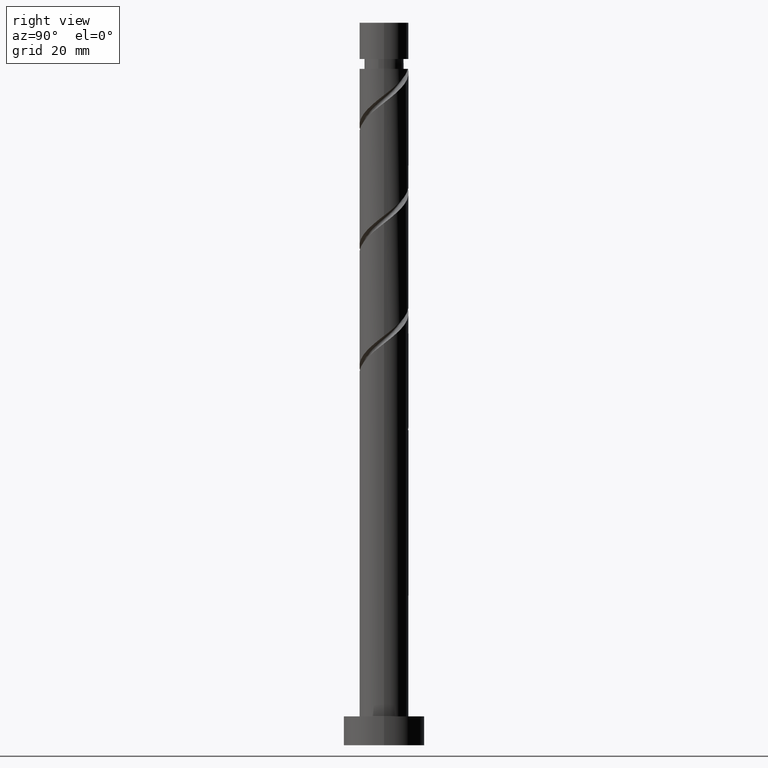
[diagram: clean part render]
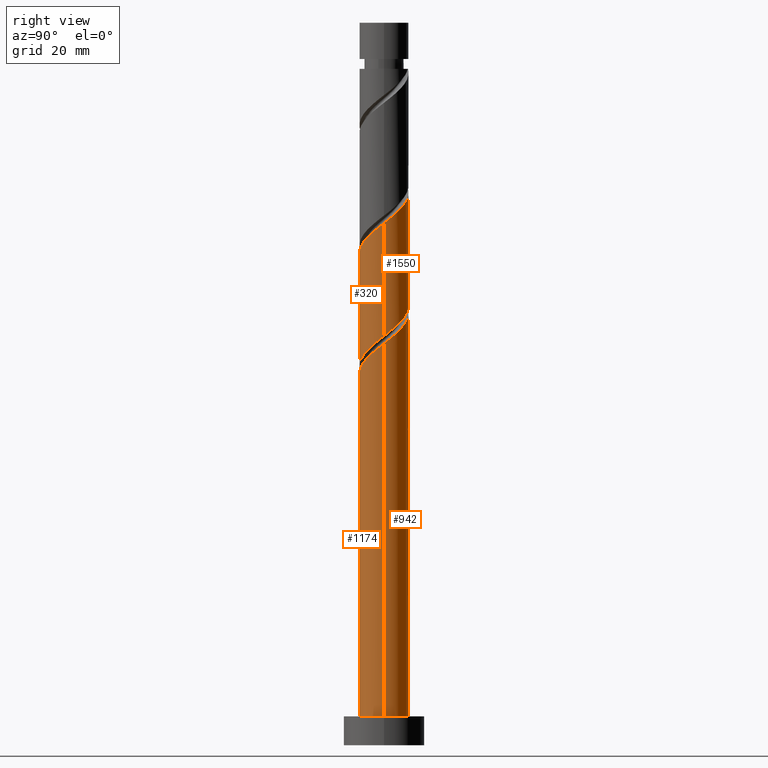
[diagram: same view with one multi-face feature highlighted, each face labeled with its STEP entity id]
A machine part, right view. The highlighted faces form ONE feature: a constant-radius fillet chain: 4 tangent blend faces with common blend radius 4.25 mm. The faces share edges in the B-rep.
Their STEP definitions:
[1] entity #1550 (Cylinder):
#15 = CARTESIAN_POINT ( 'NONE',  ( -4.250000000000005329, 0.2421383841473366549, 100.5512557596598668 ) ) ;
#29 = VERTEX_POINT ( 'NONE', #552 ) ;
#42 = CARTESIAN_POINT ( 'NONE',  ( -3.368557083506909411, 2.677392833327503663, 79.00973595700409646 ) ) ;
#62 = CARTESIAN_POINT ( 'NONE',  ( 3.368557083506915628, 2.677392833327505883, 92.55140262367073944 ) ) ;
#89 = EDGE_CURVE ( 'NONE', #1088, #472, #399, .T. ) ;
#144 = CARTESIAN_POINT ( 'NONE',  ( -3.866668882057083589, 1.763908091860646898, 99.32223595700408225 ) ) ;
#158 = CARTESIAN_POINT ( 'NONE',  ( 1.151487905055735617, 4.146044477970352027, 94.63473595700403962 ) ) ;
#175 = CARTESIAN_POINT ( 'NONE',  ( -1.763908091860643346, 3.866668882057078704, 77.44723595700408225 ) ) ;
#177 = DIRECTION ( 'NONE',  ( -0.000000000000000000, -0.000000000000000000, -1.000000000000000000 ) ) ;
#187 = CYLINDRICAL_SURFACE ( 'NONE', #1254, 4.250000000000000000 ) ;
#192 = FACE_OUTER_BOUND ( 'NONE', #683, .T. ) ;
#202 = DIRECTION ( 'NONE',  ( -1.000000000000000000, 0.000000000000000000, 0.000000000000000000 ) ) ;
#230 = CARTESIAN_POINT ( 'NONE',  ( 4.250000000000005329, 5.157627357422775483E-15, 90.32410018220048187 ) ) ;
#252 = CARTESIAN_POINT ( 'NONE',  ( -0.8457393215406283637, 4.165000000000005365, 96.19723595700408225 ) ) ;
#266 = CARTESIAN_POINT ( 'NONE',  ( 0.8457393215406299181, 4.164999999999999147, 75.36390262367075366 ) ) ;
#269 = CARTESIAN_POINT ( 'NONE',  ( 4.165000000000005365, 0.8457393215406285858, 90.98890262367073944 ) ) ;
#296 = CARTESIAN_POINT ( 'NONE',  ( 2.091401674409914424, 3.699802567202122194, 74.32223595700408225 ) ) ;
#313 = EDGE_CURVE ( 'NONE', #1088, #1154, #589, .T. ) ;
#323 = CARTESIAN_POINT ( 'NONE',  ( 0.000000000000000000, 0.000000000000000000, 125.0000000000000000 ) ) ;
#339 = ORIENTED_EDGE ( 'NONE', *, *, #313, .T. ) ;
#350 = VECTOR ( 'NONE', #939, 1000.000000000000000 ) ;
#385 = CARTESIAN_POINT ( 'NONE',  ( -4.164999999999999147, 0.8457393215406291409, 80.57223595700409646 ) ) ;
#393 = CARTESIAN_POINT ( 'NONE',  ( 4.146044477970347586, 1.151487905055731842, 71.71806929033738243 ) ) ;
#397 = CARTESIAN_POINT ( 'NONE',  ( -3.132343059735661406, 2.872442681086236238, 98.28056929033741085 ) ) ;
#399 =( BOUNDED_CURVE ( )  B_SPLINE_CURVE ( 2, ( #883, #1370, #269, #651, #526, #62, #1556, #1227, #1484, #158, #888, #1474, #252, #511, #745, #1496, #397, #642, #144, #1120, #998, #15, #987 ),
 .UNSPECIFIED., .F., .T. ) 
 B_SPLINE_CURVE_WITH_KNOTS ( ( 3, 2, 2, 2, 2, 2, 2, 2, 2, 2, 2, 3 ),
 ( 0.4295322023138551937, 0.4375000000000000000, 0.4499999999999999556, 0.4625000000000000222, 0.4749999999999999778, 0.4875000000000000444, 0.5000000000000000000, 0.5124999999999999556, 0.5250000000000000222, 0.5374999999999999778, 0.5500000000000000444, 0.5545322023138552492 ),
 .UNSPECIFIED. ) 
 CURVE ( )  GEOMETRIC_REPRESENTATION_ITEM ( )  RATIONAL_B_SPLINE_CURVE ( ( 0.9039174447099387333, 0.9019565955404680313, 0.9090909090909164991, 0.8978984914501325632, 0.9090909090909164991, 0.8978984914501325632, 0.9090909090909164991, 0.8978984914501325632, 0.9090909090909164991, 0.8978984914501325632, 0.9090909090909164991, 0.8978984914501325632, 0.9090909090909164991, 0.8978984914501325632, 0.9090909090909164991, 0.8978984914501325632, 0.9090909090909164991, 0.8978984914501325632, 0.9090909090909164991, 0.8978984914501325632, 0.9090909090909164991, 0.9050328050005808089, 0.9039174447099387333 ) ) 
 REPRESENTATION_ITEM ( '' )  );
#412 = CARTESIAN_POINT ( 'NONE',  ( 1.505410515492323187, 4.031048050897332757, 74.84306929033742506 ) ) ;
#472 = VERTEX_POINT ( 'NONE', #1177 ) ;
#503 = CARTESIAN_POINT ( 'NONE',  ( 4.249999999999999112, 4.467944629395341012E-15, 70.82037173180769685 ) ) ;
#511 = CARTESIAN_POINT ( 'NONE',  ( -1.505410515492324075, 4.031048050897339863, 96.71806929033738243 ) ) ;
#526 = CARTESIAN_POINT ( 'NONE',  ( 3.699802567202127079, 2.091401674409914868, 92.03056929033743927 ) ) ;
#546 = CARTESIAN_POINT ( 'NONE',  ( -1.151487905055732286, 4.146044477970347586, 76.92640262367076787 ) ) ;
#552 = CARTESIAN_POINT ( 'NONE',  ( -4.249999999999999112, -5.037682535157162968E-15, 81.23703839847436825 ) ) ;
#555 = CARTESIAN_POINT ( 'NONE',  ( -4.250000000000000000, 0.4271410714851638368, 80.90273382306652650 ) ) ;
#589 = LINE ( 'NONE', #666, #1113 ) ;
#642 = CARTESIAN_POINT ( 'NONE',  ( -3.587293286143814264, 2.376328278665558180, 98.80140262367072523 ) ) ;
#646 = CARTESIAN_POINT ( 'NONE',  ( 4.250000000000000000, 0.2421383841473405407, 71.00988282101498328 ) ) ;
#651 = CARTESIAN_POINT ( 'NONE',  ( 4.031048050897339863, 1.505410515492323187, 91.50973595700408225 ) ) ;
#666 = CARTESIAN_POINT ( 'NONE',  ( 4.250000000000000000, 5.204748896376250699E-16, 125.0000000000000000 ) ) ;
#678 = LINE ( 'NONE', #1052, #350 ) ;
#683 = EDGE_LOOP ( 'NONE', ( #929, #339, #1286, #807 ) ) ;
#745 = CARTESIAN_POINT ( 'NONE',  ( -2.091401674409915312, 3.699802567202127079, 97.23890262367075366 ) ) ;
#763 = CARTESIAN_POINT ( 'NONE',  ( 0.1860681275889352893, 4.298951949102664649, 75.88473595700408225 ) ) ;
#784 = CARTESIAN_POINT ( 'NONE',  ( 3.587293286143810711, 2.376328278665553739, 72.75973595700408225 ) ) ;
#807 = ORIENTED_EDGE ( 'NONE', *, *, #1053, .F. ) ;
#867 = EDGE_CURVE ( 'NONE', #29, #1154, #1005, .T. ) ;
#881 = CARTESIAN_POINT ( 'NONE',  ( -3.699802567202122194, 2.091401674409913092, 79.53056929033741085 ) ) ;
#883 = CARTESIAN_POINT ( 'NONE',  ( 4.250000000000005329, 5.157627357422775483E-15, 90.32410018220048187 ) ) ;
#885 = CARTESIAN_POINT ( 'NONE',  ( 4.249999999999999112, 4.467944629395341012E-15, 70.82037173180769685 ) ) ;
#888 = CARTESIAN_POINT ( 'NONE',  ( 0.4827098887334009825, 4.222498213536511003, 95.15556929033739664 ) ) ;
#904 = CARTESIAN_POINT ( 'NONE',  ( -2.376328278665554627, 3.587293286143810711, 77.96806929033741085 ) ) ;
#929 = ORIENTED_EDGE ( 'NONE', *, *, #89, .F. ) ;
#939 = DIRECTION ( 'NONE',  ( -0.000000000000000000, -0.000000000000000000, -1.000000000000000000 ) ) ;
#987 = CARTESIAN_POINT ( 'NONE',  ( -4.250000000000005329, 2.458868856445742094E-15, 100.7407668488671675 ) ) ;
#992 = CARTESIAN_POINT ( 'NONE',  ( -4.031048050897333646, 1.505410515492322743, 80.05140262367075366 ) ) ;
#998 = CARTESIAN_POINT ( 'NONE',  ( -4.222498213536511003, 0.4827098887334001498, 100.3639026236707394 ) ) ;
#1005 =( BOUNDED_CURVE ( )  B_SPLINE_CURVE ( 2, ( #1501, #555, #385, #992, #881, #42, #1399, #904, #175, #546, #1367, #763, #266, #412, #296, #1026, #1125, #784, #1524, #393, #1020, #646, #885 ),
 .UNSPECIFIED., .F., .T. ) 
 B_SPLINE_CURVE_WITH_KNOTS ( ( 3, 2, 2, 2, 2, 2, 2, 2, 2, 2, 2, 3 ),
 ( 0.6795322023138551382, 0.6875000000000000000, 0.6999999999999999556, 0.7125000000000000222, 0.7249999999999999778, 0.7375000000000000444, 0.7500000000000000000, 0.7624999999999999556, 0.7750000000000000222, 0.7874999999999999778, 0.8000000000000000444, 0.8045322023138551382 ),
 .UNSPECIFIED. ) 
 CURVE ( )  GEOMETRIC_REPRESENTATION_ITEM ( )  RATIONAL_B_SPLINE_CURVE ( ( 0.9039174447099327381, 0.9019565955404620361, 0.9090909090909105039, 0.8978984914501265679, 0.9090909090909105039, 0.8978984914501265679, 0.9090909090909105039, 0.8978984914501265679, 0.9090909090909105039, 0.8978984914501265679, 0.9090909090909105039, 0.8978984914501265679, 0.9090909090909105039, 0.8978984914501265679, 0.9090909090909105039, 0.8978984914501265679, 0.9090909090909105039, 0.8978984914501265679, 0.9090909090909105039, 0.8978984914501265679, 0.9090909090909105039, 0.9050328050005749247, 0.9039174447099327381 ) ) 
 REPRESENTATION_ITEM ( '' )  );
#1020 = CARTESIAN_POINT ( 'NONE',  ( 4.222498213536506562, 0.4827098887333977073, 71.19723595700409646 ) ) ;
#1026 = CARTESIAN_POINT ( 'NONE',  ( 2.677392833327504551, 3.368557083506908967, 73.80140262367072523 ) ) ;
#1052 = CARTESIAN_POINT ( 'NONE',  ( -4.250000000000000000, 0.000000000000000000, 125.0000000000000000 ) ) ;
#1053 = EDGE_CURVE ( 'NONE', #472, #29, #678, .T. ) ;
#1088 = VERTEX_POINT ( 'NONE', #230 ) ;
#1113 = VECTOR ( 'NONE', #177, 1000.000000000000000 ) ;
#1120 = CARTESIAN_POINT ( 'NONE',  ( -4.146044477970352027, 1.151487905055735173, 99.84306929033741085 ) ) ;
#1125 = CARTESIAN_POINT ( 'NONE',  ( 3.132343059735657853, 2.872442681086231797, 73.28056929033742506 ) ) ;
#1154 = VERTEX_POINT ( 'NONE', #503 ) ;
#1177 = CARTESIAN_POINT ( 'NONE',  ( -4.250000000000005329, 2.458868856445742094E-15, 100.7407668488671675 ) ) ;
#1227 = CARTESIAN_POINT ( 'NONE',  ( 2.376328278665559512, 3.587293286143813820, 93.59306929033742506 ) ) ;
#1254 = AXIS2_PLACEMENT_3D ( 'NONE', #323, #1305, #202 ) ;
#1286 = ORIENTED_EDGE ( 'NONE', *, *, #867, .F. ) ;
#1305 = DIRECTION ( 'NONE',  ( -0.000000000000000000, -0.000000000000000000, -1.000000000000000000 ) ) ;
#1367 = CARTESIAN_POINT ( 'NONE',  ( -0.4827098887333985955, 4.222498213536506562, 76.40556929033741085 ) ) ;
#1370 = CARTESIAN_POINT ( 'NONE',  ( 4.250000000000005329, 0.4271410714851656132, 90.65840475760832362 ) ) ;
#1399 = CARTESIAN_POINT ( 'NONE',  ( -2.872442681086231797, 3.132343059735656965, 78.48890262367075366 ) ) ;
#1474 = CARTESIAN_POINT ( 'NONE',  ( -0.1860681275889338737, 4.298951949102669090, 95.67640262367076787 ) ) ;
#1484 = CARTESIAN_POINT ( 'NONE',  ( 1.763908091860647787, 3.866668882057083589, 94.11390262367072523 ) ) ;
#1496 = CARTESIAN_POINT ( 'NONE',  ( -2.677392833327506327, 3.368557083506915184, 97.75973595700409646 ) ) ;
#1501 = CARTESIAN_POINT ( 'NONE',  ( -4.249999999999999112, -5.037682535157162968E-15, 81.23703839847436825 ) ) ;
#1524 = CARTESIAN_POINT ( 'NONE',  ( 3.866668882057079148, 1.763908091860642680, 72.23890262367075366 ) ) ;
#1550 = ADVANCED_FACE ( 'NONE', ( #192 ), #187, .T. ) ;
#1556 = CARTESIAN_POINT ( 'NONE',  ( 2.872442681086236682, 3.132343059735660518, 93.07223595700409646 ) ) ;
[2] entity #320 (Cylinder):
#30 = CARTESIAN_POINT ( 'NONE',  ( -4.250000000000000000, -0.2421383841473411791, 60.59321615434829766 ) ) ;
#57 = CARTESIAN_POINT ( 'NONE',  ( -1.151487905055735173, -4.146044477970352027, 84.21806929033739664 ) ) ;
#65 = CARTESIAN_POINT ( 'NONE',  ( 2.677392833327505883, -3.368557083506915184, 87.34306929033741085 ) ) ;
#90 = CARTESIAN_POINT ( 'NONE',  ( 4.222498213536511003, -0.4827098887334005384, 89.94723595700406804 ) ) ;
#100 = DIRECTION ( 'NONE',  ( -0.000000000000000000, -0.000000000000000000, -1.000000000000000000 ) ) ;
#115 = CARTESIAN_POINT ( 'NONE',  ( -4.249999999999999112, -5.037682535157162968E-15, 60.40370506514102544 ) ) ;
#155 = CARTESIAN_POINT ( 'NONE',  ( -4.250000000000005329, -5.697379057618182477E-15, 79.90743351553382468 ) ) ;
#160 = CARTESIAN_POINT ( 'NONE',  ( -3.587293286143809823, -2.376328278665554627, 62.34306929033741085 ) ) ;
#167 = CARTESIAN_POINT ( 'NONE',  ( -4.222498213536506562, -0.4827098887333983179, 60.78056929033740374 ) ) ;
#177 = DIRECTION ( 'NONE',  ( -0.000000000000000000, -0.000000000000000000, -1.000000000000000000 ) ) ;
#215 = EDGE_CURVE ( 'NONE', #822, #544, #1354, .T. ) ;
#230 = CARTESIAN_POINT ( 'NONE',  ( 4.250000000000005329, 5.157627357422775483E-15, 90.32410018220048187 ) ) ;
#268 = CARTESIAN_POINT ( 'NONE',  ( -4.250000000000000000, 0.000000000000000000, 125.0000000000000000 ) ) ;
#271 = CARTESIAN_POINT ( 'NONE',  ( 4.031048050897332757, -1.505410515492323187, 69.63473595700408225 ) ) ;
#313 = EDGE_CURVE ( 'NONE', #1088, #1154, #589, .T. ) ;
#318 = FACE_OUTER_BOUND ( 'NONE', #1207, .T. ) ;
#320 = ADVANCED_FACE ( 'NONE', ( #318 ), #1027, .T. ) ;
#329 = CARTESIAN_POINT ( 'NONE',  ( 0.8457393215406288078, -4.165000000000005365, 85.78056929033743927 ) ) ;
#382 = CARTESIAN_POINT ( 'NONE',  ( -0.8457393215406293629, -4.164999999999999147, 64.94723595700406804 ) ) ;
#400 = CARTESIAN_POINT ( 'NONE',  ( 3.368557083506908967, -2.677392833327504551, 68.59306929033742506 ) ) ;
#415 = CARTESIAN_POINT ( 'NONE',  ( 1.505410515492323409, -4.031048050897339863, 86.30140262367071102 ) ) ;
#422 = CARTESIAN_POINT ( 'NONE',  ( -2.376328278665558180, -3.587293286143813820, 83.17640262367075366 ) ) ;
#440 =( BOUNDED_CURVE ( )  B_SPLINE_CURVE ( 2, ( #1505, #1500, #1259, #271, #1112, #400, #1001, #761, #1145, #779, #536, #989, #382, #635, #879, #1251, #1490, #160, #644, #1388, #167, #30, #1365 ),
 .UNSPECIFIED., .F., .T. ) 
 B_SPLINE_CURVE_WITH_KNOTS ( ( 3, 2, 2, 2, 2, 2, 2, 2, 2, 2, 2, 3 ),
 ( 0.8045322023138551382, 0.8125000000000000000, 0.8249999999999999556, 0.8375000000000000222, 0.8499999999999999778, 0.8625000000000000444, 0.8750000000000000000, 0.8874999999999999556, 0.9000000000000000222, 0.9124999999999999778, 0.9250000000000000444, 0.9295322023138551382 ),
 .UNSPECIFIED. ) 
 CURVE ( )  GEOMETRIC_REPRESENTATION_ITEM ( )  RATIONAL_B_SPLINE_CURVE ( ( 0.9039174447099327381, 0.9019565955404620361, 0.9090909090909105039, 0.8978984914501265679, 0.9090909090909105039, 0.8978984914501265679, 0.9090909090909105039, 0.8978984914501265679, 0.9090909090909105039, 0.8978984914501265679, 0.9090909090909105039, 0.8978984914501265679, 0.9090909090909105039, 0.8978984914501265679, 0.9090909090909105039, 0.8978984914501265679, 0.9090909090909105039, 0.8978984914501265679, 0.9090909090909105039, 0.8978984914501265679, 0.9090909090909105039, 0.9050328050005749247, 0.9039174447099327381 ) ) 
 REPRESENTATION_ITEM ( '' )  );
#460 = CARTESIAN_POINT ( 'NONE',  ( -4.165000000000005365, -0.8457393215406290299, 80.57223595700406804 ) ) ;
#463 = EDGE_CURVE ( 'NONE', #822, #1088, #731, .T. ) ;
#503 = CARTESIAN_POINT ( 'NONE',  ( 4.249999999999999112, 4.467944629395341012E-15, 70.82037173180769685 ) ) ;
#536 = CARTESIAN_POINT ( 'NONE',  ( 0.4827098887333978738, -4.222498213536506562, 65.98890262367075366 ) ) ;
#544 = VERTEX_POINT ( 'NONE', #115 ) ;
#551 = CARTESIAN_POINT ( 'NONE',  ( -0.4827098887334003718, -4.222498213536511003, 84.73890262367072523 ) ) ;
#589 = LINE ( 'NONE', #666, #1113 ) ;
#635 = CARTESIAN_POINT ( 'NONE',  ( -1.505410515492322743, -4.031048050897332757, 64.42640262367075366 ) ) ;
#644 = CARTESIAN_POINT ( 'NONE',  ( -3.866668882057078704, -1.763908091860643124, 61.82223595700408225 ) ) ;
#666 = CARTESIAN_POINT ( 'NONE',  ( 4.250000000000000000, 5.204748896376250699E-16, 125.0000000000000000 ) ) ;
#697 = CARTESIAN_POINT ( 'NONE',  ( 3.132343059735660518, -2.872442681086236238, 87.86390262367073944 ) ) ;
#704 = DIRECTION ( 'NONE',  ( -1.000000000000000000, 0.000000000000000000, 0.000000000000000000 ) ) ;
#731 =( BOUNDED_CURVE ( )  B_SPLINE_CURVE ( 2, ( #1527, #1143, #460, #947, #1317, #1521, #940, #422, #906, #57, #551, #1023, #329, #415, #1392, #65, #697, #932, #820, #1420, #90, #811, #1298 ),
 .UNSPECIFIED., .F., .T. ) 
 B_SPLINE_CURVE_WITH_KNOTS ( ( 3, 2, 2, 2, 2, 2, 2, 2, 2, 2, 2, 3 ),
 ( 0.3045322023138551937, 0.3125000000000000000, 0.3249999999999999556, 0.3375000000000000222, 0.3499999999999999778, 0.3625000000000000444, 0.3750000000000000000, 0.3874999999999999556, 0.4000000000000000222, 0.4124999999999999778, 0.4250000000000000444, 0.4295322023138551937 ),
 .UNSPECIFIED. ) 
 CURVE ( )  GEOMETRIC_REPRESENTATION_ITEM ( )  RATIONAL_B_SPLINE_CURVE ( ( 0.9039174447099387333, 0.9019565955404680313, 0.9090909090909164991, 0.8978984914501325632, 0.9090909090909164991, 0.8978984914501325632, 0.9090909090909164991, 0.8978984914501325632, 0.9090909090909164991, 0.8978984914501325632, 0.9090909090909164991, 0.8978984914501325632, 0.9090909090909164991, 0.8978984914501325632, 0.9090909090909164991, 0.8978984914501325632, 0.9090909090909164991, 0.8978984914501325632, 0.9090909090909164991, 0.8978984914501325632, 0.9090909090909164991, 0.9050328050005809200, 0.9039174447099387333 ) ) 
 REPRESENTATION_ITEM ( '' )  );
#759 = DIRECTION ( 'NONE',  ( -0.000000000000000000, -0.000000000000000000, -1.000000000000000000 ) ) ;
#761 = CARTESIAN_POINT ( 'NONE',  ( 2.376328278665554183, -3.587293286143810711, 67.55140262367075366 ) ) ;
#779 = CARTESIAN_POINT ( 'NONE',  ( 1.151487905055731842, -4.146044477970347586, 66.50973595700408225 ) ) ;
#800 = ORIENTED_EDGE ( 'NONE', *, *, #1348, .F. ) ;
#811 = CARTESIAN_POINT ( 'NONE',  ( 4.250000000000005329, -0.2421383841473401244, 90.13458909299320965 ) ) ;
#820 = CARTESIAN_POINT ( 'NONE',  ( 3.866668882057083589, -1.763908091860647342, 88.90556929033741085 ) ) ;
#822 = VERTEX_POINT ( 'NONE', #155 ) ;
#879 = CARTESIAN_POINT ( 'NONE',  ( -2.091401674409913980, -3.699802567202122194, 63.90556929033741795 ) ) ;
#906 = CARTESIAN_POINT ( 'NONE',  ( -1.763908091860647342, -3.866668882057083589, 83.69723595700411067 ) ) ;
#932 = CARTESIAN_POINT ( 'NONE',  ( 3.587293286143814264, -2.376328278665559512, 88.38473595700408225 ) ) ;
#940 = CARTESIAN_POINT ( 'NONE',  ( -2.872442681086236238, -3.132343059735660518, 82.65556929033743927 ) ) ;
#947 = CARTESIAN_POINT ( 'NONE',  ( -4.031048050897339863, -1.505410515492323409, 81.09306929033739664 ) ) ;
#965 = ORIENTED_EDGE ( 'NONE', *, *, #313, .F. ) ;
#982 = VECTOR ( 'NONE', #759, 1000.000000000000000 ) ;
#989 = CARTESIAN_POINT ( 'NONE',  ( -0.1860681275889359276, -4.298951949102664649, 65.46806929033742506 ) ) ;
#1001 = CARTESIAN_POINT ( 'NONE',  ( 2.872442681086231797, -3.132343059735657409, 68.07223595700409646 ) ) ;
#1023 = CARTESIAN_POINT ( 'NONE',  ( 0.1860681275889342901, -4.298951949102669090, 85.25973595700409646 ) ) ;
#1027 = CYLINDRICAL_SURFACE ( 'NONE', #1039, 4.250000000000000000 ) ;
#1039 = AXIS2_PLACEMENT_3D ( 'NONE', #1513, #100, #704 ) ;
#1057 = ORIENTED_EDGE ( 'NONE', *, *, #215, .T. ) ;
#1088 = VERTEX_POINT ( 'NONE', #230 ) ;
#1112 = CARTESIAN_POINT ( 'NONE',  ( 3.699802567202122194, -2.091401674409913980, 69.11390262367073944 ) ) ;
#1113 = VECTOR ( 'NONE', #177, 1000.000000000000000 ) ;
#1143 = CARTESIAN_POINT ( 'NONE',  ( -4.250000000000005329, -0.4271410714851661128, 80.24173809094166643 ) ) ;
#1145 = CARTESIAN_POINT ( 'NONE',  ( 1.763908091860643124, -3.866668882057078704, 67.03056929033742506 ) ) ;
#1154 = VERTEX_POINT ( 'NONE', #503 ) ;
#1181 = ORIENTED_EDGE ( 'NONE', *, *, #463, .F. ) ;
#1207 = EDGE_LOOP ( 'NONE', ( #965, #1181, #1057, #800 ) ) ;
#1251 = CARTESIAN_POINT ( 'NONE',  ( -2.677392833327503663, -3.368557083506908967, 63.38473595700408225 ) ) ;
#1259 = CARTESIAN_POINT ( 'NONE',  ( 4.164999999999999147, -0.8457393215406295850, 70.15556929033741085 ) ) ;
#1298 = CARTESIAN_POINT ( 'NONE',  ( 4.250000000000005329, 5.157627357422775483E-15, 90.32410018220048187 ) ) ;
#1317 = CARTESIAN_POINT ( 'NONE',  ( -3.699802567202127079, -2.091401674409915312, 81.61390262367073944 ) ) ;
#1348 = EDGE_CURVE ( 'NONE', #1154, #544, #440, .T. ) ;
#1354 = LINE ( 'NONE', #268, #982 ) ;
#1365 = CARTESIAN_POINT ( 'NONE',  ( -4.249999999999999112, -5.037682535157162968E-15, 60.40370506514102544 ) ) ;
#1388 = CARTESIAN_POINT ( 'NONE',  ( -4.146044477970347586, -1.151487905055732286, 61.30140262367076787 ) ) ;
#1392 = CARTESIAN_POINT ( 'NONE',  ( 2.091401674409914868, -3.699802567202127079, 86.82223595700406804 ) ) ;
#1420 = CARTESIAN_POINT ( 'NONE',  ( 4.146044477970352027, -1.151487905055735617, 89.42640262367073944 ) ) ;
#1490 = CARTESIAN_POINT ( 'NONE',  ( -3.132343059735657409, -2.872442681086231797, 62.86390262367075366 ) ) ;
#1500 = CARTESIAN_POINT ( 'NONE',  ( 4.250000000000000000, -0.4271410714851642809, 70.48606715639984088 ) ) ;
#1505 = CARTESIAN_POINT ( 'NONE',  ( 4.249999999999999112, 4.467944629395341012E-15, 70.82037173180769685 ) ) ;
#1513 = CARTESIAN_POINT ( 'NONE',  ( 0.000000000000000000, 0.000000000000000000, 125.0000000000000000 ) ) ;
#1521 = CARTESIAN_POINT ( 'NONE',  ( -3.368557083506915184, -2.677392833327506327, 82.13473595700408225 ) ) ;
#1527 = CARTESIAN_POINT ( 'NONE',  ( -4.250000000000005329, -5.697379057618182477E-15, 79.90743351553382468 ) ) ;
[3] entity #942 (Cylinder):
#9 = ORIENTED_EDGE ( 'NONE', *, *, #785, .F. ) ;
#33 = CARTESIAN_POINT ( 'NONE',  ( 0.000000000000000000, 0.000000000000000000, 54.53056929033747480 ) ) ;
#39 = CARTESIAN_POINT ( 'NONE',  ( -4.250000000000005329, -5.697379057618182477E-15, 59.07410018220048897 ) ) ;
#54 = FACE_OUTER_BOUND ( 'NONE', #197, .T. ) ;
#76 = CARTESIAN_POINT ( 'NONE',  ( 0.1860681275889352893, 4.298951949102664649, 55.05140262367074655 ) ) ;
#79 = ORIENTED_EDGE ( 'NONE', *, *, #424, .T. ) ;
#94 = ORIENTED_EDGE ( 'NONE', *, *, #497, .T. ) ;
#99 = EDGE_CURVE ( 'NONE', #1349, #110, #379, .T. ) ;
#110 = VERTEX_POINT ( 'NONE', #1213 ) ;
#115 = CARTESIAN_POINT ( 'NONE',  ( -4.249999999999999112, -5.037682535157162968E-15, 60.40370506514102544 ) ) ;
#126 =( BOUNDED_CURVE ( )  B_SPLINE_CURVE ( 2, ( #685, #334, #1059, #1161, #581, #439, #810, #327, #1543, #1288, #426, #76, #194 ),
 .UNSPECIFIED., .F., .T. ) 
 B_SPLINE_CURVE_WITH_KNOTS ( ( 3, 2, 2, 2, 2, 2, 3 ),
 ( 0.9295322023138551382, 0.9375000000000000000, 0.9499999999999999556, 0.9625000000000000222, 0.9749999999999999778, 0.9875000000000000444, 1.000000000000000000 ),
 .UNSPECIFIED. ) 
 CURVE ( )  GEOMETRIC_REPRESENTATION_ITEM ( )  RATIONAL_B_SPLINE_CURVE ( ( 0.9039174447099327381, 0.9019565955404620361, 0.9090909090909105039, 0.8978984914501265679, 0.9090909090909105039, 0.8978984914501265679, 0.9090909090909105039, 0.8978984914501265679, 0.9090909090909105039, 0.8978984914501265679, 0.9090909090909105039, 0.8978984914501265679, 0.9090909090909105039 ) ) 
 REPRESENTATION_ITEM ( '' )  );
#140 = CARTESIAN_POINT ( 'NONE',  ( -0.1860681275889338737, 4.298951949102669090, 74.84306929033743927 ) ) ;
#146 = CARTESIAN_POINT ( 'NONE',  ( -0.8457393215406283637, 4.165000000000005365, 54.53056929033742506 ) ) ;
#149 = CARTESIAN_POINT ( 'NONE',  ( -3.866668882057083589, 1.763908091860646898, 78.48890262367073944 ) ) ;
#155 = CARTESIAN_POINT ( 'NONE',  ( -4.250000000000005329, -5.697379057618182477E-15, 79.90743351553382468 ) ) ;
#163 = CARTESIAN_POINT ( 'NONE',  ( -4.250000000000000000, 0.000000000000000000, 125.0000000000000000 ) ) ;
#180 = CIRCLE ( 'NONE', #1299, 4.250000000000000000 ) ;
#194 = CARTESIAN_POINT ( 'NONE',  ( 0.8457393215406299181, 4.164999999999999147, 54.53056929033742506 ) ) ;
#197 = EDGE_LOOP ( 'NONE', ( #9, #94, #79, #480, #1379, #688, #302, #884 ) ) ;
#215 = EDGE_CURVE ( 'NONE', #822, #544, #1354, .T. ) ;
#248 = CARTESIAN_POINT ( 'NONE',  ( 2.376328278665559512, 3.587293286143813820, 72.75973595700406804 ) ) ;
#250 = VECTOR ( 'NONE', #619, 1000.000000000000000 ) ;
#251 = AXIS2_PLACEMENT_3D ( 'NONE', #1390, #289, #1437 ) ;
#265 = CARTESIAN_POINT ( 'NONE',  ( -3.132343059735661406, 2.872442681086236238, 56.61390262367074655 ) ) ;
#268 = CARTESIAN_POINT ( 'NONE',  ( -4.250000000000000000, 0.000000000000000000, 125.0000000000000000 ) ) ;
#277 = DIRECTION ( 'NONE',  ( -0.000000000000000000, -0.000000000000000000, -1.000000000000000000 ) ) ;
#283 = CARTESIAN_POINT ( 'NONE',  ( -4.250000000000005329, -5.697379057618182477E-15, 79.90743351553382468 ) ) ;
#288 = CARTESIAN_POINT ( 'NONE',  ( -1.505410515492324075, 4.031048050897339863, 55.05140262367075366 ) ) ;
#289 = DIRECTION ( 'NONE',  ( -0.000000000000000000, -0.000000000000000000, -1.000000000000000000 ) ) ;
#302 = ORIENTED_EDGE ( 'NONE', *, *, #951, .F. ) ;
#327 = CARTESIAN_POINT ( 'NONE',  ( -2.376328278665554627, 3.587293286143810711, 57.13473595700408936 ) ) ;
#334 = CARTESIAN_POINT ( 'NONE',  ( -4.250000000000000000, 0.4271410714851638368, 60.06940048973319080 ) ) ;
#379 = LINE ( 'NONE', #163, #1011 ) ;
#401 = DIRECTION ( 'NONE',  ( 0.000000000000000000, -1.224510688924802354E-14, -1.000000000000000000 ) ) ;
#405 = DIRECTION ( 'NONE',  ( 0.000000000000000000, 0.000000000000000000, 1.000000000000000000 ) ) ;
#420 = CARTESIAN_POINT ( 'NONE',  ( -3.132343059735661406, 2.872442681086236238, 77.44723595700408225 ) ) ;
#424 = EDGE_CURVE ( 'NONE', #1186, #110, #180, .T. ) ;
#426 = CARTESIAN_POINT ( 'NONE',  ( -0.4827098887333985955, 4.222498213536506562, 55.57223595700408936 ) ) ;
#439 = CARTESIAN_POINT ( 'NONE',  ( -3.368557083506909411, 2.677392833327503663, 58.17640262367076076 ) ) ;
#480 = ORIENTED_EDGE ( 'NONE', *, *, #99, .F. ) ;
#497 = EDGE_CURVE ( 'NONE', #567, #1186, #1205, .T. ) ;
#505 = CARTESIAN_POINT ( 'NONE',  ( 0.4827098887334009825, 4.222498213536511003, 74.32223595700406804 ) ) ;
#517 = CARTESIAN_POINT ( 'NONE',  ( -4.146044477970352027, 1.151487905055735173, 58.17640262367073944 ) ) ;
#519 = CYLINDRICAL_SURFACE ( 'NONE', #251, 4.250000000000000000 ) ;
#538 = CARTESIAN_POINT ( 'NONE',  ( -1.505410515492324075, 4.031048050897339863, 75.88473595700405383 ) ) ;
#544 = VERTEX_POINT ( 'NONE', #115 ) ;
#554 = CARTESIAN_POINT ( 'NONE',  ( -2.091401674409915312, 3.699802567202127079, 55.57223595700408225 ) ) ;
#567 = VERTEX_POINT ( 'NONE', #611 ) ;
#581 = CARTESIAN_POINT ( 'NONE',  ( -3.699802567202122194, 2.091401674409913092, 58.69723595700408225 ) ) ;
#597 = CARTESIAN_POINT ( 'NONE',  ( 2.872442681086236682, 3.132343059735660518, 72.23890262367073944 ) ) ;
#611 = CARTESIAN_POINT ( 'NONE',  ( 4.250000000000005329, 5.157627357422775483E-15, 69.49076684886715327 ) ) ;
#619 = DIRECTION ( 'NONE',  ( -0.000000000000000000, -0.000000000000000000, -1.000000000000000000 ) ) ;
#628 = CARTESIAN_POINT ( 'NONE',  ( -0.8457393215406283637, 4.165000000000005365, 75.36390262367073944 ) ) ;
#685 = CARTESIAN_POINT ( 'NONE',  ( -4.249999999999999112, -5.037682535157162968E-15, 60.40370506514102544 ) ) ;
#688 = ORIENTED_EDGE ( 'NONE', *, *, #910, .T. ) ;
#719 = CARTESIAN_POINT ( 'NONE',  ( 3.699802567202127079, 2.091401674409914868, 71.19723595700406804 ) ) ;
#725 = CARTESIAN_POINT ( 'NONE',  ( 4.031048050897339863, 1.505410515492323187, 70.67640262367073944 ) ) ;
#741 = CARTESIAN_POINT ( 'NONE',  ( 1.763908091860647787, 3.866668882057083589, 73.28056929033743927 ) ) ;
#749 = CARTESIAN_POINT ( 'NONE',  ( -4.250000000000005329, 0.2421383841473374321, 58.88458909299320965 ) ) ;
#759 = DIRECTION ( 'NONE',  ( -0.000000000000000000, -0.000000000000000000, -1.000000000000000000 ) ) ;
#767 = CIRCLE ( 'NONE', #1092, 4.250000000000000000 ) ;
#773 = CARTESIAN_POINT ( 'NONE',  ( -2.677392833327506327, 3.368557083506915184, 76.92640262367075366 ) ) ;
#785 = EDGE_CURVE ( 'NONE', #567, #822, #1156, .T. ) ;
#810 = CARTESIAN_POINT ( 'NONE',  ( -2.872442681086231797, 3.132343059735656965, 57.65556929033742506 ) ) ;
#822 = VERTEX_POINT ( 'NONE', #155 ) ;
#851 = CARTESIAN_POINT ( 'NONE',  ( 4.250000000000000000, 5.204748896376250699E-16, 125.0000000000000000 ) ) ;
#856 = VERTEX_POINT ( 'NONE', #1003 ) ;
#861 = CARTESIAN_POINT ( 'NONE',  ( 4.250000000000005329, 5.157627357422774694E-15, 69.49076684886715327 ) ) ;
#884 = ORIENTED_EDGE ( 'NONE', *, *, #215, .F. ) ;
#910 = EDGE_CURVE ( 'NONE', #856, #1545, #767, .T. ) ;
#942 = ADVANCED_FACE ( 'NONE', ( #54 ), #519, .T. ) ;
#951 = EDGE_CURVE ( 'NONE', #544, #1545, #126, .T. ) ;
#982 = VECTOR ( 'NONE', #759, 1000.000000000000000 ) ;
#1003 = CARTESIAN_POINT ( 'NONE',  ( -0.8457393215406283637, 4.165000000000005365, 54.53056929033742506 ) ) ;
#1009 = CARTESIAN_POINT ( 'NONE',  ( -4.222498213536511003, 0.4827098887334001498, 58.69723595700406804 ) ) ;
#1011 = VECTOR ( 'NONE', #277, 1000.000000000000000 ) ;
#1016 = CARTESIAN_POINT ( 'NONE',  ( 0.000000000000000000, 0.000000000000000000, 5.000000000000000000 ) ) ;
#1059 = CARTESIAN_POINT ( 'NONE',  ( -4.164999999999999147, 0.8457393215406291409, 59.73890262367076787 ) ) ;
#1091 = CARTESIAN_POINT ( 'NONE',  ( 4.250000000000000000, 5.204748896376250699E-16, 5.000000000000000000 ) ) ;
#1092 = AXIS2_PLACEMENT_3D ( 'NONE', #33, #401, #1141 ) ;
#1123 = CARTESIAN_POINT ( 'NONE',  ( -2.677392833327506327, 3.368557083506915184, 56.09306929033741085 ) ) ;
#1132 = CARTESIAN_POINT ( 'NONE',  ( -2.091401674409915312, 3.699802567202127079, 76.40556929033742506 ) ) ;
#1141 = DIRECTION ( 'NONE',  ( 0.000000000000000000, 1.000000000000000000, -1.142876642996484637E-14 ) ) ;
#1146 = CARTESIAN_POINT ( 'NONE',  ( -4.146044477970352027, 1.151487905055735173, 79.00973595700406804 ) ) ;
#1156 =( BOUNDED_CURVE ( )  B_SPLINE_CURVE ( 2, ( #861, #1359, #1233, #725, #719, #1351, #597, #248, #741, #1222, #505, #140, #628, #538, #1132, #773, #420, #1267, #149, #1146, #1494, #1373, #283 ),
 .UNSPECIFIED., .F., .T. ) 
 B_SPLINE_CURVE_WITH_KNOTS ( ( 3, 2, 2, 2, 2, 2, 2, 2, 2, 2, 2, 3 ),
 ( 0.1795322023138550271, 0.1875000000000000000, 0.1999999999999999556, 0.2125000000000000222, 0.2249999999999999778, 0.2375000000000000444, 0.2500000000000000000, 0.2624999999999999556, 0.2750000000000000222, 0.2874999999999999778, 0.3000000000000000444, 0.3045322023138551937 ),
 .UNSPECIFIED. ) 
 CURVE ( )  GEOMETRIC_REPRESENTATION_ITEM ( )  RATIONAL_B_SPLINE_CURVE ( ( 0.9039174447099389553, 0.9019565955404679203, 0.9090909090909164991, 0.8978984914501325632, 0.9090909090909164991, 0.8978984914501325632, 0.9090909090909164991, 0.8978984914501325632, 0.9090909090909164991, 0.8978984914501325632, 0.9090909090909164991, 0.8978984914501325632, 0.9090909090909164991, 0.8978984914501325632, 0.9090909090909164991, 0.8978984914501325632, 0.9090909090909164991, 0.8978984914501325632, 0.9090909090909164991, 0.8978984914501325632, 0.9090909090909164991, 0.9050328050005809200, 0.9039174447099387333 ) ) 
 REPRESENTATION_ITEM ( '' )  );
#1161 = CARTESIAN_POINT ( 'NONE',  ( -4.031048050897333646, 1.505410515492322743, 59.21806929033742506 ) ) ;
#1186 = VERTEX_POINT ( 'NONE', #1091 ) ;
#1205 = LINE ( 'NONE', #851, #250 ) ;
#1213 = CARTESIAN_POINT ( 'NONE',  ( -4.250000000000000000, 0.000000000000000000, 5.000000000000000000 ) ) ;
#1222 = CARTESIAN_POINT ( 'NONE',  ( 1.151487905055735617, 4.146044477970352027, 73.80140262367075366 ) ) ;
#1233 = CARTESIAN_POINT ( 'NONE',  ( 4.165000000000005365, 0.8457393215406285858, 70.15556929033742506 ) ) ;
#1242 = CARTESIAN_POINT ( 'NONE',  ( -4.250000000000005329, -5.697379057618183266E-15, 59.07410018220048897 ) ) ;
#1263 = DIRECTION ( 'NONE',  ( 1.000000000000000000, 0.000000000000000000, 0.000000000000000000 ) ) ;
#1265 = CARTESIAN_POINT ( 'NONE',  ( -3.866668882057083589, 1.763908091860646898, 57.65556929033741085 ) ) ;
#1267 = CARTESIAN_POINT ( 'NONE',  ( -3.587293286143814264, 2.376328278665558180, 77.96806929033741085 ) ) ;
#1283 = EDGE_CURVE ( 'NONE', #856, #1349, #1540, .T. ) ;
#1288 = CARTESIAN_POINT ( 'NONE',  ( -1.151487905055732286, 4.146044477970347586, 56.09306929033741085 ) ) ;
#1299 = AXIS2_PLACEMENT_3D ( 'NONE', #1016, #405, #1263 ) ;
#1349 = VERTEX_POINT ( 'NONE', #39 ) ;
#1351 = CARTESIAN_POINT ( 'NONE',  ( 3.368557083506915628, 2.677392833327505883, 71.71806929033741085 ) ) ;
#1354 = LINE ( 'NONE', #268, #982 ) ;
#1359 = CARTESIAN_POINT ( 'NONE',  ( 4.250000000000006217, 0.4271410714851567314, 69.82507142427498081 ) ) ;
#1372 = CARTESIAN_POINT ( 'NONE',  ( -3.587293286143814264, 2.376328278665558180, 57.13473595700408225 ) ) ;
#1373 = CARTESIAN_POINT ( 'NONE',  ( -4.250000000000005329, 0.2421383841473396525, 79.71792242632653824 ) ) ;
#1379 = ORIENTED_EDGE ( 'NONE', *, *, #1283, .F. ) ;
#1390 = CARTESIAN_POINT ( 'NONE',  ( 0.000000000000000000, 0.000000000000000000, 125.0000000000000000 ) ) ;
#1437 = DIRECTION ( 'NONE',  ( -1.000000000000000000, 0.000000000000000000, 0.000000000000000000 ) ) ;
#1494 = CARTESIAN_POINT ( 'NONE',  ( -4.222498213536511003, 0.4827098887334001498, 79.53056929033742506 ) ) ;
#1523 = CARTESIAN_POINT ( 'NONE',  ( 0.8457393215406299181, 4.164999999999999147, 54.53056929033742506 ) ) ;
#1540 =( BOUNDED_CURVE ( )  B_SPLINE_CURVE ( 2, ( #146, #288, #554, #1123, #265, #1372, #1265, #517, #1009, #749, #1242 ),
 .UNSPECIFIED., .F., .T. ) 
 B_SPLINE_CURVE_WITH_KNOTS ( ( 3, 2, 2, 2, 2, 3 ),
 ( 0.000000000000000000, 0.01249999999999995559, 0.02500000000000002220, 0.03749999999999997780, 0.05000000000000004441, 0.05453220231385523531 ),
 .UNSPECIFIED. ) 
 CURVE ( )  GEOMETRIC_REPRESENTATION_ITEM ( )  RATIONAL_B_SPLINE_CURVE ( ( 0.9090909090909164991, 0.8978984914501325632, 0.9090909090909164991, 0.8978984914501325632, 0.9090909090909164991, 0.8978984914501325632, 0.9090909090909164991, 0.8978984914501325632, 0.9090909090909164991, 0.9050328050005808089, 0.9039174447099386223 ) ) 
 REPRESENTATION_ITEM ( '' )  );
#1543 = CARTESIAN_POINT ( 'NONE',  ( -1.763908091860643346, 3.866668882057078704, 56.61390262367074655 ) ) ;
#1545 = VERTEX_POINT ( 'NONE', #1523 ) ;
[4] entity #1174 (Cylinder):
#39 = CARTESIAN_POINT ( 'NONE',  ( -4.250000000000005329, -5.697379057618182477E-15, 59.07410018220048897 ) ) ;
#75 = CIRCLE ( 'NONE', #98, 4.250000000000000000 ) ;
#98 = AXIS2_PLACEMENT_3D ( 'NONE', #1136, #264, #754 ) ;
#99 = EDGE_CURVE ( 'NONE', #1349, #110, #379, .T. ) ;
#110 = VERTEX_POINT ( 'NONE', #1213 ) ;
#122 = CARTESIAN_POINT ( 'NONE',  ( 3.132343059735660518, -2.872442681086236238, 67.03056929033742506 ) ) ;
#141 = EDGE_CURVE ( 'NONE', #110, #1186, #75, .T. ) ;
#163 = CARTESIAN_POINT ( 'NONE',  ( -4.250000000000000000, 0.000000000000000000, 125.0000000000000000 ) ) ;
#212 = DIRECTION ( 'NONE',  ( -1.000000000000000000, 0.000000000000000000, 0.000000000000000000 ) ) ;
#222 = CARTESIAN_POINT ( 'NONE',  ( -1.763908091860647342, -3.866668882057083589, 62.86390262367073944 ) ) ;
#238 = CARTESIAN_POINT ( 'NONE',  ( 3.866668882057083589, -1.763908091860647342, 68.07223595700409646 ) ) ;
#246 = CARTESIAN_POINT ( 'NONE',  ( 1.505410515492323409, -4.031048050897339863, 65.46806929033742506 ) ) ;
#250 = VECTOR ( 'NONE', #619, 1000.000000000000000 ) ;
#264 = DIRECTION ( 'NONE',  ( 0.000000000000000000, 0.000000000000000000, 1.000000000000000000 ) ) ;
#277 = DIRECTION ( 'NONE',  ( -0.000000000000000000, -0.000000000000000000, -1.000000000000000000 ) ) ;
#352 = CARTESIAN_POINT ( 'NONE',  ( -2.376328278665558180, -3.587293286143813820, 62.34306929033741795 ) ) ;
#363 = CARTESIAN_POINT ( 'NONE',  ( 4.250000000000003553, -0.2421383841473489784, 69.30125575965983842 ) ) ;
#379 = LINE ( 'NONE', #163, #1011 ) ;
#389 =( BOUNDED_CURVE ( )  B_SPLINE_CURVE ( 2, ( #738, #1477, #1573, #601, #1202, #1101, #952, #352, #222, #1074, #473, #842, #1469, #246, #959, #1331, #122, #609, #238, #1219, #733, #363, #1208 ),
 .UNSPECIFIED., .F., .T. ) 
 B_SPLINE_CURVE_WITH_KNOTS ( ( 3, 2, 2, 2, 2, 2, 2, 2, 2, 2, 2, 3 ),
 ( 0.05453220231385523531, 0.06250000000000000000, 0.07499999999999995559, 0.08750000000000002220, 0.09999999999999997780, 0.1125000000000000444, 0.1250000000000000000, 0.1374999999999999556, 0.1500000000000000222, 0.1624999999999999778, 0.1750000000000000444, 0.1795322023138550271 ),
 .UNSPECIFIED. ) 
 CURVE ( )  GEOMETRIC_REPRESENTATION_ITEM ( )  RATIONAL_B_SPLINE_CURVE ( ( 0.9039174447099386223, 0.9019565955404680313, 0.9090909090909164991, 0.8978984914501325632, 0.9090909090909164991, 0.8978984914501325632, 0.9090909090909164991, 0.8978984914501325632, 0.9090909090909164991, 0.8978984914501325632, 0.9090909090909164991, 0.8978984914501325632, 0.9090909090909164991, 0.8978984914501325632, 0.9090909090909164991, 0.8978984914501325632, 0.9090909090909164991, 0.8978984914501325632, 0.9090909090909164991, 0.8978984914501325632, 0.9090909090909164991, 0.9050328050005811420, 0.9039174447099389553 ) ) 
 REPRESENTATION_ITEM ( '' )  );
#467 = CARTESIAN_POINT ( 'NONE',  ( 0.000000000000000000, 0.000000000000000000, 125.0000000000000000 ) ) ;
#473 = CARTESIAN_POINT ( 'NONE',  ( -0.4827098887334003718, -4.222498213536511003, 63.90556929033741795 ) ) ;
#493 = FACE_OUTER_BOUND ( 'NONE', #501, .T. ) ;
#497 = EDGE_CURVE ( 'NONE', #567, #1186, #1205, .T. ) ;
#501 = EDGE_LOOP ( 'NONE', ( #1339, #1280, #1306, #831 ) ) ;
#567 = VERTEX_POINT ( 'NONE', #611 ) ;
#601 = CARTESIAN_POINT ( 'NONE',  ( -4.031048050897339863, -1.505410515492323409, 60.25973595700407515 ) ) ;
#609 = CARTESIAN_POINT ( 'NONE',  ( 3.587293286143814264, -2.376328278665559512, 67.55140262367075366 ) ) ;
#611 = CARTESIAN_POINT ( 'NONE',  ( 4.250000000000005329, 5.157627357422775483E-15, 69.49076684886715327 ) ) ;
#616 = DIRECTION ( 'NONE',  ( -0.000000000000000000, -0.000000000000000000, -1.000000000000000000 ) ) ;
#619 = DIRECTION ( 'NONE',  ( -0.000000000000000000, -0.000000000000000000, -1.000000000000000000 ) ) ;
#733 = CARTESIAN_POINT ( 'NONE',  ( 4.222498213536511003, -0.4827098887334005384, 69.11390262367073944 ) ) ;
#738 = CARTESIAN_POINT ( 'NONE',  ( -4.250000000000005329, -5.697379057618183266E-15, 59.07410018220048897 ) ) ;
#754 = DIRECTION ( 'NONE',  ( 1.000000000000000000, 0.000000000000000000, 0.000000000000000000 ) ) ;
#831 = ORIENTED_EDGE ( 'NONE', *, *, #141, .T. ) ;
#842 = CARTESIAN_POINT ( 'NONE',  ( 0.1860681275889342901, -4.298951949102669090, 64.42640262367075366 ) ) ;
#851 = CARTESIAN_POINT ( 'NONE',  ( 4.250000000000000000, 5.204748896376250699E-16, 125.0000000000000000 ) ) ;
#952 = CARTESIAN_POINT ( 'NONE',  ( -2.872442681086236238, -3.132343059735660518, 61.82223595700407515 ) ) ;
#959 = CARTESIAN_POINT ( 'NONE',  ( 2.091401674409914868, -3.699802567202127079, 65.98890262367073944 ) ) ;
#1011 = VECTOR ( 'NONE', #277, 1000.000000000000000 ) ;
#1074 = CARTESIAN_POINT ( 'NONE',  ( -1.151487905055735173, -4.146044477970352027, 63.38473595700406804 ) ) ;
#1091 = CARTESIAN_POINT ( 'NONE',  ( 4.250000000000000000, 5.204748896376250699E-16, 5.000000000000000000 ) ) ;
#1101 = CARTESIAN_POINT ( 'NONE',  ( -3.368557083506915184, -2.677392833327506327, 61.30140262367075366 ) ) ;
#1136 = CARTESIAN_POINT ( 'NONE',  ( 0.000000000000000000, 0.000000000000000000, 5.000000000000000000 ) ) ;
#1174 = ADVANCED_FACE ( 'NONE', ( #493 ), #1315, .T. ) ;
#1186 = VERTEX_POINT ( 'NONE', #1091 ) ;
#1202 = CARTESIAN_POINT ( 'NONE',  ( -3.699802567202127079, -2.091401674409915312, 60.78056929033742506 ) ) ;
#1205 = LINE ( 'NONE', #851, #250 ) ;
#1208 = CARTESIAN_POINT ( 'NONE',  ( 4.250000000000005329, 5.157627357422774694E-15, 69.49076684886715327 ) ) ;
#1213 = CARTESIAN_POINT ( 'NONE',  ( -4.250000000000000000, 0.000000000000000000, 5.000000000000000000 ) ) ;
#1219 = CARTESIAN_POINT ( 'NONE',  ( 4.146044477970352027, -1.151487905055735617, 68.59306929033741085 ) ) ;
#1266 = EDGE_CURVE ( 'NONE', #1349, #567, #389, .T. ) ;
#1280 = ORIENTED_EDGE ( 'NONE', *, *, #1266, .F. ) ;
#1301 = AXIS2_PLACEMENT_3D ( 'NONE', #467, #616, #212 ) ;
#1306 = ORIENTED_EDGE ( 'NONE', *, *, #99, .T. ) ;
#1315 = CYLINDRICAL_SURFACE ( 'NONE', #1301, 4.250000000000000000 ) ;
#1331 = CARTESIAN_POINT ( 'NONE',  ( 2.677392833327505883, -3.368557083506915184, 66.50973595700408225 ) ) ;
#1339 = ORIENTED_EDGE ( 'NONE', *, *, #497, .F. ) ;
#1349 = VERTEX_POINT ( 'NONE', #39 ) ;
#1469 = CARTESIAN_POINT ( 'NONE',  ( 0.8457393215406288078, -4.165000000000005365, 64.94723595700408225 ) ) ;
#1477 = CARTESIAN_POINT ( 'NONE',  ( -4.250000000000005329, -0.4271410714851683332, 59.40840475760835204 ) ) ;
#1573 = CARTESIAN_POINT ( 'NONE',  ( -4.165000000000005365, -0.8457393215406290299, 59.73890262367076076 ) ) ;